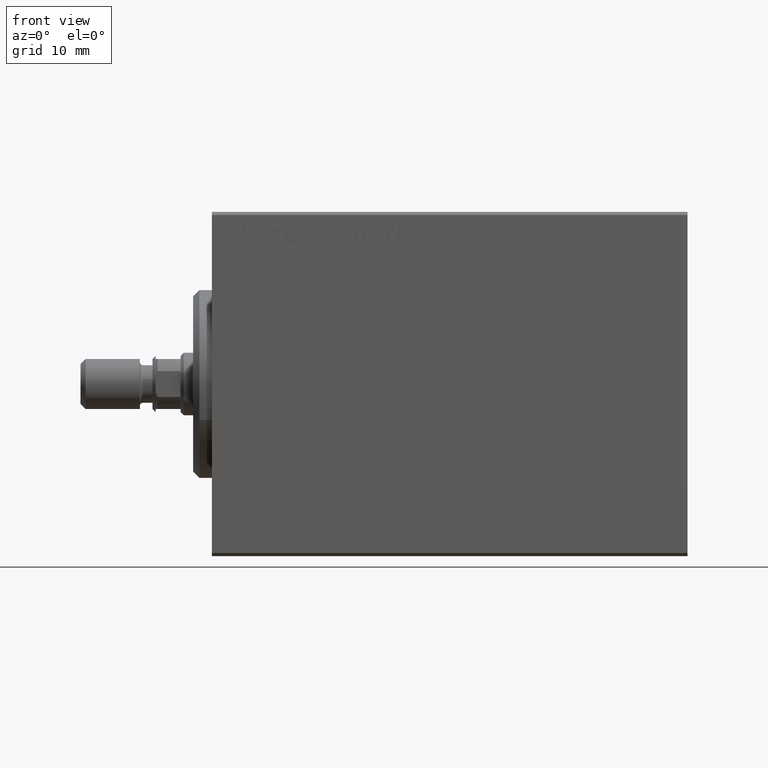
[diagram: clean part render]
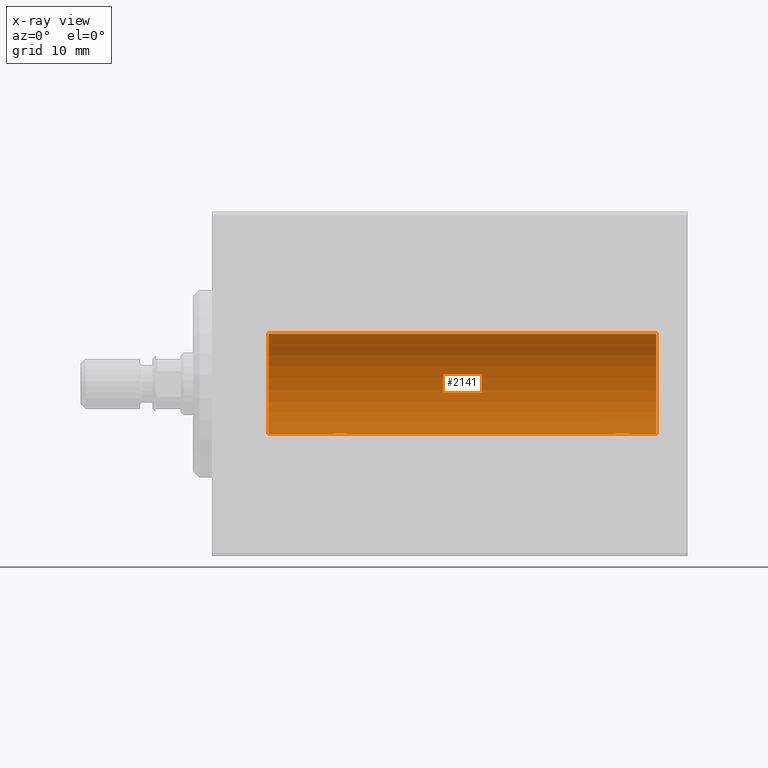
[diagram: x-ray — body ghosted, one internal face saturated and labeled with its STEP entity id]
A machine part, front view, then the same camera in x-ray: the body is ghosted and one INTERNAL B-rep face — a face not visible from any outside direction — is saturated and labeled: STEP entity #2141.
In plain terms, the highlighted cylindrical surface (partial cylindrical patch) has radius 8 mm, axis along (-1, -0, -0).
Its self-contained STEP definition (entity closure, byte-faithful):
#485 = DIRECTION ( 'NONE',  ( -1.000000000000000000, -0.000000000000000000, -0.000000000000000000 ) ) ;
#523 = EDGE_CURVE ( 'NONE', #1384, #13852, #41643, .T. ) ;
#848 = CARTESIAN_POINT ( 'NONE',  ( 20.33619145091235936, 1.249938428426572656, -7.901750054830717573 ) ) ;
#1071 = CARTESIAN_POINT ( 'NONE',  ( 19.73146701955095494, 0.9991832710565806686, -7.938201675418735448 ) ) ;
#1384 = VERTEX_POINT ( 'NONE', #34219 ) ;
#1753 = CARTESIAN_POINT ( 'NONE',  ( 19.87074834296262438, 1.092266057037466487, -7.925334523600932712 ) ) ;
#1969 = VERTEX_POINT ( 'NONE', #37227 ) ;
#2050 = CARTESIAN_POINT ( 'NONE',  ( 66.75000000000000000, 9.797173987969553159E-16, -7.999999999999998224 ) ) ;
#2141 = ADVANCED_FACE ( 'NONE', ( #14026 ), #3919, .F. ) ;
#2271 = CARTESIAN_POINT ( 'NONE',  ( 71.00000000000000000, 9.797174393178823685E-16, -7.999999999999998224 ) ) ;
#2455 = ORIENTED_EDGE ( 'NONE', *, *, #40825, .T. ) ;
#2487 = CARTESIAN_POINT ( 'NONE',  ( 19.25000000000000711, -6.253246997522681077E-15, -7.999999999999998224 ) ) ;
#2577 = VECTOR ( 'NONE', #32405, 1000.000000000000000 ) ;
#2747 = ORIENTED_EDGE ( 'NONE', *, *, #6645, .T. ) ;
#3238 = B_SPLINE_CURVE_WITH_KNOTS ( 'NONE', 3,
 ( #35709, #10970, #17933, #4915, #31664, #1071, #1753, #25120, #848, #11868, #32334, #42477, #25572, #11638, #39323, #21971, #7607, #21513, #38866, #15456, #8047, #4687 ),
 .UNSPECIFIED., .F., .F.,
 ( 4, 2, 2, 2, 2, 2, 2, 2, 2, 2, 4 ),
 ( 4.384776375612755932E-19, 0.0004892585179631271522, 0.0009785170359262538708, 0.001467775553889380698, 0.001957034071852507308, 0.002201663330834065842, 0.002446292589815623510, 0.002935551107778730170, 0.003424809625741835964, 0.003669438884723391463, 0.003914068143704946962 ),
 .UNSPECIFIED. ) ;
#3919 = CYLINDRICAL_SURFACE ( 'NONE', #41433, 7.999999999999998224 ) ;
#4099 = LINE ( 'NONE', #24749, #4318 ) ;
#4221 = ORIENTED_EDGE ( 'NONE', *, *, #6878, .F. ) ;
#4292 = CARTESIAN_POINT ( 'NONE',  ( 71.00000000000000000, 9.797174393178823685E-16, -7.999999999999998224 ) ) ;
#4318 = VECTOR ( 'NONE', #485, 1000.000000000000000 ) ;
#4687 = CARTESIAN_POINT ( 'NONE',  ( 21.75000000000000355, 9.797173987965608855E-16, -7.999999999999998224 ) ) ;
#4915 = CARTESIAN_POINT ( 'NONE',  ( 19.40826977845302537, 0.6304521543648575754, -7.976560245937306171 ) ) ;
#5673 = EDGE_LOOP ( 'NONE', ( #17229, #4221, #35927, #2455, #25801, #2747, #40087, #14951 ) ) ;
#5688 = DIRECTION ( 'NONE',  ( -1.000000000000000000, -0.000000000000000000, -0.000000000000000000 ) ) ;
#5964 = CARTESIAN_POINT ( 'NONE',  ( 66.70976650520091766, 0.3250523954932719728, -7.993796610540221614 ) ) ;
#6178 = CARTESIAN_POINT ( 'NONE',  ( 64.28266791658455759, 0.3277916934117490189, -7.994719249713585718 ) ) ;
#6402 = CARTESIAN_POINT ( 'NONE',  ( 66.75000000000000000, 9.797173987969553159E-16, -7.999999999999998224 ) ) ;
#6645 = EDGE_CURVE ( 'NONE', #23618, #43875, #3238, .T. ) ;
#6834 = CARTESIAN_POINT ( 'NONE',  ( 65.90257413385909047, 1.186236229830384792, -7.911627449023371561 ) ) ;
#6878 = EDGE_CURVE ( 'NONE', #1969, #29014, #10629, .T. ) ;
#7313 = VERTEX_POINT ( 'NONE', #36222 ) ;
#7607 = CARTESIAN_POINT ( 'NONE',  ( 21.59204967621043991, 0.6298709050361920303, -7.976604806854521001 ) ) ;
#8047 = CARTESIAN_POINT ( 'NONE',  ( 21.75000000000000000, 0.08164616652084619175, -7.999999999999998224 ) ) ;
#9323 = CARTESIAN_POINT ( 'NONE',  ( 66.59204967621045057, 0.6298709050361931405, -7.976604806854521001 ) ) ;
#9544 = CARTESIAN_POINT ( 'NONE',  ( 64.50115498801910974, 0.7689725568822839419, -7.963798983873343396 ) ) ;
#9761 = CARTESIAN_POINT ( 'NONE',  ( 66.74181525892409184, 0.1645871186493911009, -7.998709545350111583 ) ) ;
#10629 = CIRCLE ( 'NONE', #18529, 7.999999999999998224 ) ;
#10970 = CARTESIAN_POINT ( 'NONE',  ( 19.25000000000000711, 0.1654536524217966875, -8.000000000000000000 ) ) ;
#11638 = CARTESIAN_POINT ( 'NONE',  ( 21.12982270639374605, 1.092113850918997153, -7.925358570881165576 ) ) ;
#11868 = CARTESIAN_POINT ( 'NONE',  ( 20.58119849493555620, 1.250030652953401988, -7.901735465557267801 ) ) ;
#12343 = CARTESIAN_POINT ( 'NONE',  ( 9.000000000000001776, 0.000000000000000000, 0.000000000000000000 ) ) ;
#13852 = VERTEX_POINT ( 'NONE', #2050 ) ;
#14026 = FACE_OUTER_BOUND ( 'NONE', #5673, .T. ) ;
#14951 = ORIENTED_EDGE ( 'NONE', *, *, #523, .T. ) ;
#15058 = DIRECTION ( 'NONE',  ( -1.000000000000000000, -0.000000000000000000, -0.000000000000000000 ) ) ;
#15456 = CARTESIAN_POINT ( 'NONE',  ( 21.74181525892405986, 0.1645871186493928773, -7.998709545350109806 ) ) ;
#15604 = AXIS2_PLACEMENT_3D ( 'NONE', #12343, #22444, #18405 ) ;
#15913 = EDGE_CURVE ( 'NONE', #1969, #31326, #4099, .T. ) ;
#16501 = CARTESIAN_POINT ( 'NONE',  ( 65.33619145091232383, 1.249938428426571102, -7.901750054830717573 ) ) ;
#16937 = CARTESIAN_POINT ( 'NONE',  ( 64.40826977845304668, 0.6304521543648602400, -7.976560245937304394 ) ) ;
#17229 = ORIENTED_EDGE ( 'NONE', *, *, #18546, .F. ) ;
#17933 = CARTESIAN_POINT ( 'NONE',  ( 19.28266791658456825, 0.3277916934117463543, -7.994719249713585718 ) ) ;
#18405 = DIRECTION ( 'NONE',  ( 0.000000000000000000, 0.000000000000000000, 1.000000000000000000 ) ) ;
#18529 = AXIS2_PLACEMENT_3D ( 'NONE', #23521, #41300, #30505 ) ;
#18546 = EDGE_CURVE ( 'NONE', #29014, #13852, #40084, .T. ) ;
#19380 = CARTESIAN_POINT ( 'NONE',  ( 71.00000000000000000, 9.797174393178823685E-16, -7.999999999999998224 ) ) ;
#20522 = CARTESIAN_POINT ( 'NONE',  ( 66.26739091610627952, 1.000368629246207508, -7.938072339095200824 ) ) ;
#21513 = CARTESIAN_POINT ( 'NONE',  ( 21.68608944587722576, 0.4029817482954558550, -7.990203133273719338 ) ) ;
#21971 = CARTESIAN_POINT ( 'NONE',  ( 21.50031982237068107, 0.7674545364220053401, -7.963965305651049320 ) ) ;
#22444 = DIRECTION ( 'NONE',  ( -1.000000000000000000, 0.000000000000000000, 0.000000000000000000 ) ) ;
#23028 = CARTESIAN_POINT ( 'NONE',  ( 64.73146701955096205, 0.9991832710565828890, -7.938201675418739001 ) ) ;
#23521 = CARTESIAN_POINT ( 'NONE',  ( 71.00000000000000000, 0.000000000000000000, 0.000000000000000000 ) ) ;
#23618 = VERTEX_POINT ( 'NONE', #2487 ) ;
#24361 = DIRECTION ( 'NONE',  ( 0.000000000000000000, 0.000000000000000000, 1.000000000000000000 ) ) ;
#24749 = CARTESIAN_POINT ( 'NONE',  ( 71.00000000000000000, 0.000000000000000000, 7.999999999999998224 ) ) ;
#25120 = CARTESIAN_POINT ( 'NONE',  ( 20.17150130922778573, 1.217000984963200860, -7.907141142849008375 ) ) ;
#25572 = CARTESIAN_POINT ( 'NONE',  ( 20.90257413385907270, 1.186236229830388345, -7.911627449023368008 ) ) ;
#25801 = ORIENTED_EDGE ( 'NONE', *, *, #34607, .F. ) ;
#26407 = CARTESIAN_POINT ( 'NONE',  ( 66.50031982237064199, 0.7674545364220096699, -7.963965305651042215 ) ) ;
#29014 = VERTEX_POINT ( 'NONE', #35574 ) ;
#30232 = CARTESIAN_POINT ( 'NONE',  ( 65.66417091690311736, 1.241868426634440192, -7.903038949453009998 ) ) ;
#30505 = DIRECTION ( 'NONE',  ( 0.000000000000000000, 0.000000000000000000, 1.000000000000000000 ) ) ;
#30665 = CARTESIAN_POINT ( 'NONE',  ( 64.87074834296264214, 1.092266057037468485, -7.925334523600930936 ) ) ;
#31075 = CARTESIAN_POINT ( 'NONE',  ( 21.75000000000000355, 9.797173987965608855E-16, -7.999999999999998224 ) ) ;
#31326 = VERTEX_POINT ( 'NONE', #37529 ) ;
#31350 = DIRECTION ( 'NONE',  ( -1.000000000000000000, -0.000000000000000000, -0.000000000000000000 ) ) ;
#31664 = CARTESIAN_POINT ( 'NONE',  ( 19.50115498801909197, 0.7689725568822818325, -7.963798983873345172 ) ) ;
#32334 = CARTESIAN_POINT ( 'NONE',  ( 20.66417091690312091, 1.241868426634441747, -7.903038949453011774 ) ) ;
#32405 = DIRECTION ( 'NONE',  ( -1.000000000000000000, -0.000000000000000000, -0.000000000000000000 ) ) ;
#33593 = EDGE_CURVE ( 'NONE', #1384, #43875, #42304, .T. ) ;
#33603 = CARTESIAN_POINT ( 'NONE',  ( 64.25000000000001421, 0.1654536524217959936, -8.000000000000000000 ) ) ;
#34219 = CARTESIAN_POINT ( 'NONE',  ( 64.25000000000000000, -6.659485810916753827E-15, -7.999999999999998224 ) ) ;
#34256 = CARTESIAN_POINT ( 'NONE',  ( 65.58119849493554909, 1.250030652953400878, -7.901735465557266025 ) ) ;
#34607 = EDGE_CURVE ( 'NONE', #23618, #7313, #43662, .T. ) ;
#35574 = CARTESIAN_POINT ( 'NONE',  ( 71.00000000000000000, 9.797174393178823685E-16, -7.999999999999998224 ) ) ;
#35709 = CARTESIAN_POINT ( 'NONE',  ( 19.25000000000000711, -6.253246997522681077E-15, -7.999999999999998224 ) ) ;
#35927 = ORIENTED_EDGE ( 'NONE', *, *, #15913, .T. ) ;
#36222 = CARTESIAN_POINT ( 'NONE',  ( 9.000000000000001776, 9.797174393178823685E-16, -7.999999999999998224 ) ) ;
#36762 = CARTESIAN_POINT ( 'NONE',  ( 66.68608944587724352, 0.4029817482954575758, -7.990203133273722891 ) ) ;
#37200 = CARTESIAN_POINT ( 'NONE',  ( 66.75000000000002842, 0.08164616652084637216, -8.000000000000000000 ) ) ;
#37227 = CARTESIAN_POINT ( 'NONE',  ( 71.00000000000000000, 0.000000000000000000, 7.999999999999998224 ) ) ;
#37529 = CARTESIAN_POINT ( 'NONE',  ( 9.000000000000001776, 0.000000000000000000, 7.999999999999998224 ) ) ;
#37642 = CARTESIAN_POINT ( 'NONE',  ( 66.12982270639373894, 1.092113850918993156, -7.925358570881167353 ) ) ;
#38593 = CIRCLE ( 'NONE', #15604, 7.999999999999998224 ) ;
#38866 = CARTESIAN_POINT ( 'NONE',  ( 21.70976650520091411, 0.3250523954932730830, -7.993796610540221614 ) ) ;
#39323 = CARTESIAN_POINT ( 'NONE',  ( 21.26739091610630084, 1.000368629246204399, -7.938072339095202601 ) ) ;
#40084 = LINE ( 'NONE', #19380, #41713 ) ;
#40087 = ORIENTED_EDGE ( 'NONE', *, *, #33593, .F. ) ;
#40365 = CARTESIAN_POINT ( 'NONE',  ( 64.25000000000000000, -6.659485810916753827E-15, -7.999999999999998224 ) ) ;
#40597 = VECTOR ( 'NONE', #15058, 1000.000000000000000 ) ;
#40825 = EDGE_CURVE ( 'NONE', #31326, #7313, #38593, .T. ) ;
#41300 = DIRECTION ( 'NONE',  ( -1.000000000000000000, 0.000000000000000000, 0.000000000000000000 ) ) ;
#41433 = AXIS2_PLACEMENT_3D ( 'NONE', #41488, #31350, #24361 ) ;
#41488 = CARTESIAN_POINT ( 'NONE',  ( 71.00000000000000000, 0.000000000000000000, 0.000000000000000000 ) ) ;
#41643 = B_SPLINE_CURVE_WITH_KNOTS ( 'NONE', 3,
 ( #40365, #33603, #6178, #16937, #9544, #23028, #30665, #43972, #16501, #34256, #30232, #44415, #6834, #37642, #20522, #26407, #9323, #36762, #5964, #9761, #37200, #6402 ),
 .UNSPECIFIED., .F., .F.,
 ( 4, 2, 2, 2, 2, 2, 2, 2, 2, 2, 4 ),
 ( 2.714691887865150212E-19, 0.0004892585179631261764, 0.0009785170359262517024, 0.001467775553889377445, 0.001957034071852502971, 0.002201663330834045026, 0.002446292589815587080, 0.002935551107778708920, 0.003424809625741830760, 0.003669438884723392330, 0.003914068143704953033 ),
 .UNSPECIFIED. ) ;
#41713 = VECTOR ( 'NONE', #5688, 1000.000000000000000 ) ;
#42304 = LINE ( 'NONE', #4292, #40597 ) ;
#42477 = CARTESIAN_POINT ( 'NONE',  ( 20.82459038316880395, 1.209888574283866758, -7.907997942808293601 ) ) ;
#43662 = LINE ( 'NONE', #2271, #2577 ) ;
#43875 = VERTEX_POINT ( 'NONE', #31075 ) ;
#43972 = CARTESIAN_POINT ( 'NONE',  ( 65.17150130922780704, 1.217000984963202193, -7.907141142849008375 ) ) ;
#44415 = CARTESIAN_POINT ( 'NONE',  ( 65.82459038316882527, 1.209888574283864315, -7.907997942808294489 ) ) ;